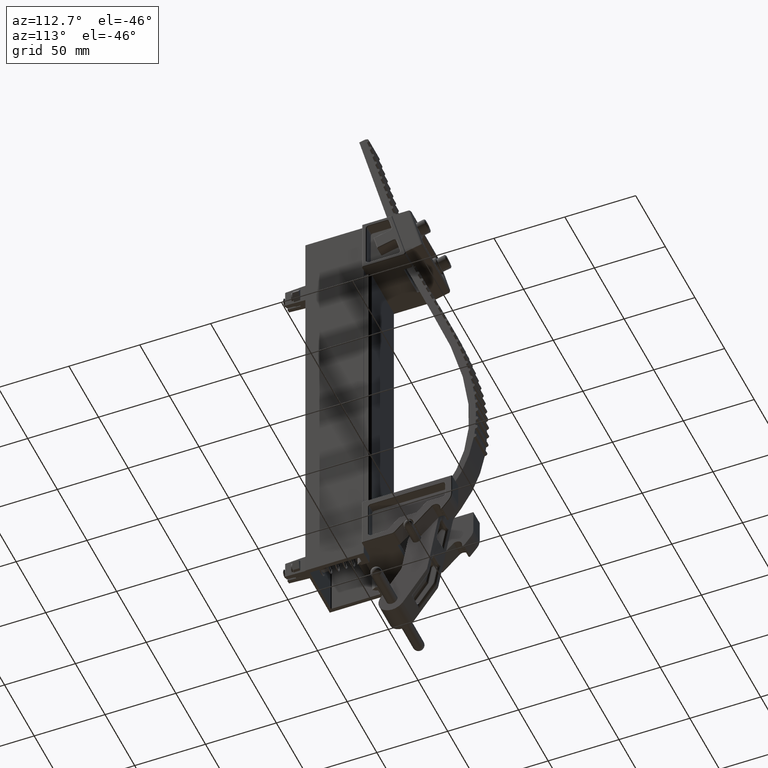
[diagram: clean part render]
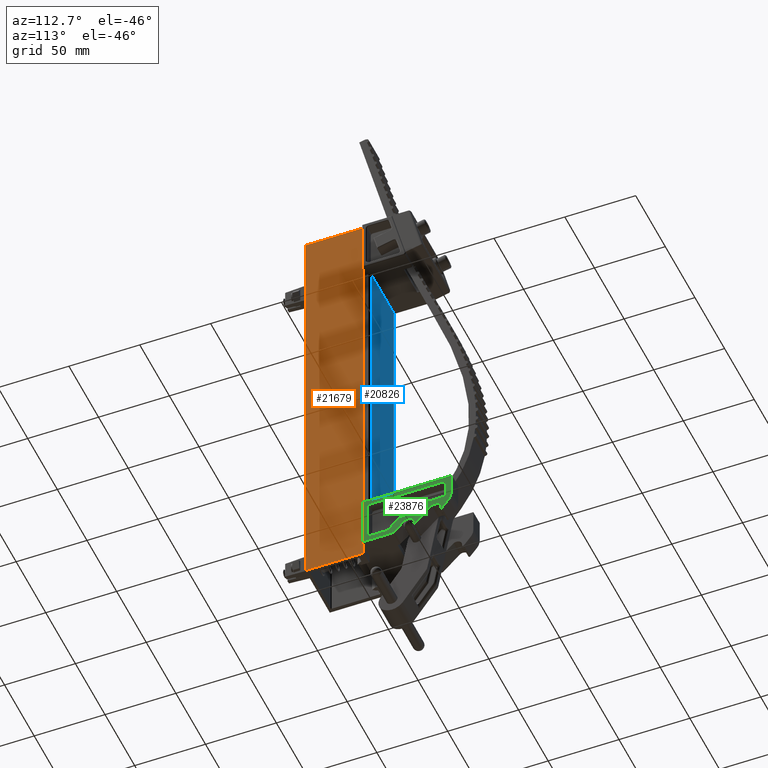
[diagram: same view with three faces highlighted in distinct colors, each labeled with its STEP entity id]
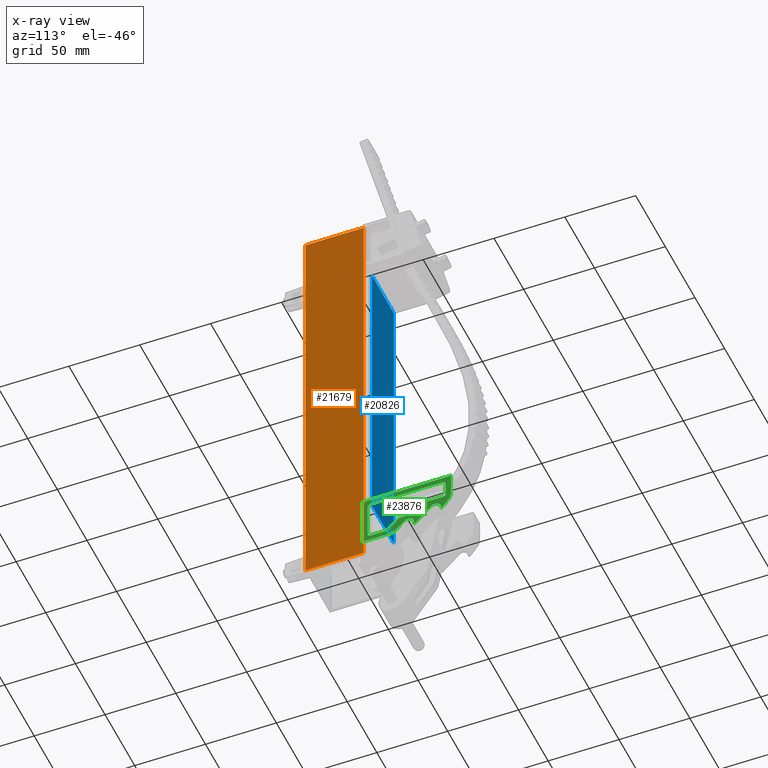
[diagram: x-ray of the same camera — body ghosted, the three highlighted faces saturated]
A machine part, auxiliary view with three faces highlighted in distinct colors.
The next image is the same camera in x-ray (body ghosted, the three faces saturated) — at least one of them is partly hidden behind the body in this view.
Their STEP definitions:

[orange] entity #21679 — the highlighted planar face has unit normal (-1, 0, 0).
#1497 = DIRECTION ( 'NONE',  ( 0.0000000000000000000, 1.000000000000000000, 0.0000000000000000000 ) ) ;
#1947 = CARTESIAN_POINT ( 'NONE',  ( 0.8125000000000000000, 0.0000000000000000000, -6.000000000000000900 ) ) ;
#2609 = DIRECTION ( 'NONE',  ( -0.0000000000000000000, -0.0000000000000000000, -1.000000000000000000 ) ) ;
#3018 = VECTOR ( 'NONE', #44880, 39.37007874015748100 ) ;
#3542 = VECTOR ( 'NONE', #2609, 39.37007874015748100 ) ;
#3948 = ORIENTED_EDGE ( 'NONE', *, *, #15637, .T. ) ;
#4610 = LINE ( 'NONE', #12894, #3542 ) ;
#5679 = VECTOR ( 'NONE', #9348, 39.37007874015748100 ) ;
#9348 = DIRECTION ( 'NONE',  ( -0.0000000000000000000, -0.0000000000000000000, -1.000000000000000000 ) ) ;
#10344 = EDGE_CURVE ( 'NONE', #32025, #33378, #31165, .T. ) ;
#11716 = ORIENTED_EDGE ( 'NONE', *, *, #18469, .F. ) ;
#12172 = LINE ( 'NONE', #31068, #3018 ) ;
#12236 = AXIS2_PLACEMENT_3D ( 'NONE', #14028, #17492, #41753 ) ;
#12894 = CARTESIAN_POINT ( 'NONE',  ( 0.8125000000000000000, 1.625000000000000200, 6.000000000000000900 ) ) ;
#13761 = FACE_OUTER_BOUND ( 'NONE', #33421, .T. ) ;
#14028 = CARTESIAN_POINT ( 'NONE',  ( 0.8125000000000000000, 0.0000000000000000000, 6.000000000000000900 ) ) ;
#14747 = LINE ( 'NONE', #25754, #39148 ) ;
#15637 = EDGE_CURVE ( 'NONE', #33378, #27840, #12172, .T. ) ;
#17492 = DIRECTION ( 'NONE',  ( -1.000000000000000000, 0.0000000000000000000, 0.0000000000000000000 ) ) ;
#18469 = EDGE_CURVE ( 'NONE', #32025, #38270, #14747, .T. ) ;
#19429 = ORIENTED_EDGE ( 'NONE', *, *, #19674, .F. ) ;
#19460 = CARTESIAN_POINT ( 'NONE',  ( 0.8125000000000000000, 1.625000000000000200, -6.000000000000000900 ) ) ;
#19654 = CARTESIAN_POINT ( 'NONE',  ( 0.8125000000000000000, 0.0000000000000000000, 6.000000000000000900 ) ) ;
#19674 = EDGE_CURVE ( 'NONE', #38270, #27840, #4610, .T. ) ;
#21679 = ADVANCED_FACE ( 'NONE', ( #13761 ), #38255, .F. ) ;
#25754 = CARTESIAN_POINT ( 'NONE',  ( 0.8125000000000000000, 0.0000000000000000000, 6.000000000000000900 ) ) ;
#26672 = CARTESIAN_POINT ( 'NONE',  ( 0.8125000000000000000, 0.0000000000000000000, 6.000000000000000900 ) ) ;
#27840 = VERTEX_POINT ( 'NONE', #19460 ) ;
#31068 = CARTESIAN_POINT ( 'NONE',  ( 0.8125000000000000000, 0.0000000000000000000, -6.000000000000000900 ) ) ;
#31165 = LINE ( 'NONE', #26672, #5679 ) ;
#32025 = VERTEX_POINT ( 'NONE', #19654 ) ;
#33378 = VERTEX_POINT ( 'NONE', #1947 ) ;
#33421 = EDGE_LOOP ( 'NONE', ( #3948, #19429, #11716, #35254 ) ) ;
#34901 = CARTESIAN_POINT ( 'NONE',  ( 0.8125000000000000000, 1.625000000000000200, 6.000000000000000900 ) ) ;
#35254 = ORIENTED_EDGE ( 'NONE', *, *, #10344, .T. ) ;
#38255 = PLANE ( 'NONE',  #12236 ) ;
#38270 = VERTEX_POINT ( 'NONE', #34901 ) ;
#39148 = VECTOR ( 'NONE', #1497, 39.37007874015748100 ) ;
#41753 = DIRECTION ( 'NONE',  ( 0.0000000000000000000, 0.0000000000000000000, 1.000000000000000000 ) ) ;
#44880 = DIRECTION ( 'NONE',  ( 0.0000000000000000000, 1.000000000000000000, 0.0000000000000000000 ) ) ;

[blue] entity #20826 — the highlighted planar face has unit normal (0, -1, 0).
#492 = CARTESIAN_POINT ( 'NONE',  ( -0.7374999999999996000, 0.0000000000000000000, 4.250000000000000000 ) ) ;
#1872 = FACE_OUTER_BOUND ( 'NONE', #44271, .T. ) ;
#2012 = CARTESIAN_POINT ( 'NONE',  ( -0.7374999999999996000, 0.0000000000000000000, -4.250000000000000000 ) ) ;
#5474 = ORIENTED_EDGE ( 'NONE', *, *, #41858, .T. ) ;
#7296 = DIRECTION ( 'NONE',  ( 0.0000000000000000000, 0.0000000000000000000, -1.000000000000000000 ) ) ;
#13436 = ORIENTED_EDGE ( 'NONE', *, *, #14714, .T. ) ;
#13502 = CARTESIAN_POINT ( 'NONE',  ( 0.7374999999999996000, 0.0000000000000000000, -4.250000000000000000 ) ) ;
#13924 = LINE ( 'NONE', #24777, #22069 ) ;
#14714 = EDGE_CURVE ( 'NONE', #36578, #18120, #13924, .T. ) ;
#15900 = PLANE ( 'NONE',  #38100 ) ;
#16060 = DIRECTION ( 'NONE',  ( 0.0000000000000000000, -1.000000000000000000, 0.0000000000000000000 ) ) ;
#16414 = VECTOR ( 'NONE', #43381, 39.37007874015748100 ) ;
#17936 = EDGE_CURVE ( 'NONE', #36578, #30400, #18580, .T. ) ;
#18120 = VERTEX_POINT ( 'NONE', #13502 ) ;
#18580 = LINE ( 'NONE', #22635, #16414 ) ;
#20051 = VECTOR ( 'NONE', #35179, 39.37007874015748100 ) ;
#20826 = ADVANCED_FACE ( 'NONE', ( #1872 ), #15900, .F. ) ;
#21643 = LINE ( 'NONE', #43194, #30859 ) ;
#21961 = VERTEX_POINT ( 'NONE', #2012 ) ;
#22069 = VECTOR ( 'NONE', #7296, 39.37007874015748100 ) ;
#22635 = CARTESIAN_POINT ( 'NONE',  ( 0.0000000000000000000, 0.0000000000000000000, 4.250000000000000000 ) ) ;
#24777 = CARTESIAN_POINT ( 'NONE',  ( 0.7374999999999996000, 0.0000000000000000000, 4.250000000000000000 ) ) ;
#25652 = CARTESIAN_POINT ( 'NONE',  ( 0.7374999999999994900, 3.414809992080329000E-017, 4.250000000000000000 ) ) ;
#25935 = DIRECTION ( 'NONE',  ( -1.000000000000000000, -0.0000000000000000000, -0.0000000000000000000 ) ) ;
#26982 = ORIENTED_EDGE ( 'NONE', *, *, #17936, .F. ) ;
#29234 = LINE ( 'NONE', #492, #20051 ) ;
#30400 = VERTEX_POINT ( 'NONE', #44613 ) ;
#30859 = VECTOR ( 'NONE', #25935, 39.37007874015748100 ) ;
#35179 = DIRECTION ( 'NONE',  ( 0.0000000000000000000, 0.0000000000000000000, 1.000000000000000000 ) ) ;
#36578 = VERTEX_POINT ( 'NONE', #25652 ) ;
#36830 = CARTESIAN_POINT ( 'NONE',  ( 0.0000000000000000000, 0.0000000000000000000, 4.250000000000000000 ) ) ;
#38100 = AXIS2_PLACEMENT_3D ( 'NONE', #36830, #16060, #40288 ) ;
#40288 = DIRECTION ( 'NONE',  ( 0.0000000000000000000, -0.0000000000000000000, -1.000000000000000000 ) ) ;
#41631 = EDGE_CURVE ( 'NONE', #21961, #30400, #29234, .T. ) ;
#41858 = EDGE_CURVE ( 'NONE', #18120, #21961, #21643, .T. ) ;
#43194 = CARTESIAN_POINT ( 'NONE',  ( 0.0000000000000000000, 0.0000000000000000000, -4.250000000000000000 ) ) ;
#43381 = DIRECTION ( 'NONE',  ( -1.000000000000000000, -0.0000000000000000000, -0.0000000000000000000 ) ) ;
#43822 = ORIENTED_EDGE ( 'NONE', *, *, #41631, .T. ) ;
#44271 = EDGE_LOOP ( 'NONE', ( #26982, #13436, #5474, #43822 ) ) ;
#44613 = CARTESIAN_POINT ( 'NONE',  ( -0.7374999999999994900, 0.0000000000000000000, 4.250000000000000000 ) ) ;

[green] entity #23876 — the highlighted planar face has unit normal (-1, -0, 0).
#13 = CARTESIAN_POINT ( 'NONE',  ( -0.8478195611820879000, 1.932269052731227200, -0.9375000000000000000 ) ) ;
#96 = EDGE_CURVE ( 'NONE', #37571, #44599, #19238, .T. ) ;
#143 = CARTESIAN_POINT ( 'NONE',  ( -1.056398836999593400, 0.9896279441836006700, -0.9375000000000000000 ) ) ;
#200 = EDGE_CURVE ( 'NONE', #10180, #37571, #8901, .T. ) ;
#298 = VERTEX_POINT ( 'NONE', #29057 ) ;
#631 = LINE ( 'NONE', #4869, #27212 ) ;
#1152 = CARTESIAN_POINT ( 'NONE',  ( -0.4349497585570439900, 1.868428865741051500, -0.9375000000000000000 ) ) ;
#1238 = EDGE_CURVE ( 'NONE', #32155, #18754, #30555, .T. ) ;
#1244 = EDGE_CURVE ( 'NONE', #5939, #11806, #29446, .T. ) ;
#1294 = DIRECTION ( 'NONE',  ( 1.000000000000000000, 0.0000000000000000000, 0.0000000000000000000 ) ) ;
#1545 = LINE ( 'NONE', #22550, #11799 ) ;
#1605 = VERTEX_POINT ( 'NONE', #39760 ) ;
#1607 = DIRECTION ( 'NONE',  ( 0.0000000000000000000, 0.0000000000000000000, 1.000000000000000000 ) ) ;
#1625 = CIRCLE ( 'NONE', #17387, 0.08249999999999999000 ) ;
#2138 = VECTOR ( 'NONE', #27799, 39.37007874015748900 ) ;
#2257 = DIRECTION ( 'NONE',  ( 0.0000000000000000000, 0.0000000000000000000, 1.000000000000000000 ) ) ;
#2391 = LINE ( 'NONE', #17963, #23041 ) ;
#2775 = CARTESIAN_POINT ( 'NONE',  ( 0.2361011630004073400, 1.833377944183601100, -0.9375000000000000000 ) ) ;
#2796 = CARTESIAN_POINT ( 'NONE',  ( -1.118898836999593100, 1.167332447854727300, -0.9375000000000000000 ) ) ;
#3124 = LINE ( 'NONE', #37478, #20483 ) ;
#3625 = DIRECTION ( 'NONE',  ( 1.000000000000000000, 0.0000000000000000000, 0.0000000000000000000 ) ) ;
#3692 = ORIENTED_EDGE ( 'NONE', *, *, #25069, .T. ) ;
#3731 = CARTESIAN_POINT ( 'NONE',  ( -0.3998988369995928300, 2.188377944183602400, -0.9375000000000000000 ) ) ;
#3849 = AXIS2_PLACEMENT_3D ( 'NONE', #22390, #1607, #25875 ) ;
#3874 = CARTESIAN_POINT ( 'NONE',  ( -0.3998988369995934400, 1.833377944183601100, -0.9375000000000000000 ) ) ;
#3890 = CARTESIAN_POINT ( 'NONE',  ( -0.4638467987991645700, 1.516154415990646200, -0.9375000000000000000 ) ) ;
#4077 = VERTEX_POINT ( 'NONE', #36568 ) ;
#4249 = CIRCLE ( 'NONE', #20077, 0.1762500000000037600 ) ;
#4338 = DIRECTION ( 'NONE',  ( 0.7071067811865459100, 0.7071067811865492400, -0.0000000000000000000 ) ) ;
#4367 = CARTESIAN_POINT ( 'NONE',  ( 0.08860116300040714300, -0.04162205581639850200, -0.9375000000000000000 ) ) ;
#4374 = VECTOR ( 'NONE', #16490, 39.37007874015748100 ) ;
#4698 = DIRECTION ( 'NONE',  ( 0.0000000000000000000, 0.0000000000000000000, 1.000000000000000000 ) ) ;
#4869 = CARTESIAN_POINT ( 'NONE',  ( -0.1881223008597465200, 1.621601408043753700, -0.9375000000000000000 ) ) ;
#4916 = CARTESIAN_POINT ( 'NONE',  ( 0.2361011630004074300, 2.188377944183601500, -0.9375000000000000000 ) ) ;
#5133 = EDGE_CURVE ( 'NONE', #29056, #21902, #13593, .T. ) ;
#5136 = CIRCLE ( 'NONE', #3849, 0.08250000000000000400 ) ;
#5320 = AXIS2_PLACEMENT_3D ( 'NONE', #11308, #35598, #14827 ) ;
#5906 = ORIENTED_EDGE ( 'NONE', *, *, #30073, .T. ) ;
#5939 = VERTEX_POINT ( 'NONE', #35044 ) ;
#6166 = DIRECTION ( 'NONE',  ( 0.0000000000000000000, 0.0000000000000000000, 1.000000000000000000 ) ) ;
#6266 = DIRECTION ( 'NONE',  ( 1.000000000000000000, 1.126535255119352600E-014, 0.0000000000000000000 ) ) ;
#6292 = ORIENTED_EDGE ( 'NONE', *, *, #30717, .T. ) ;
#6317 = AXIS2_PLACEMENT_3D ( 'NONE', #7107, #31374, #10571 ) ;
#6569 = EDGE_CURVE ( 'NONE', #11806, #17896, #42771, .T. ) ;
#7107 = CARTESIAN_POINT ( 'NONE',  ( -1.118898836999600700, 0.5423324478547272300, -0.9375000000000000000 ) ) ;
#7109 = CARTESIAN_POINT ( 'NONE',  ( -0.4513988369995925500, 1.958377944183601300, -0.9375000000000000000 ) ) ;
#7340 = DIRECTION ( 'NONE',  ( 0.0000000000000000000, 0.0000000000000000000, 1.000000000000000000 ) ) ;
#7487 = CIRCLE ( 'NONE', #41808, 0.1762500000000037600 ) ;
#7817 = CARTESIAN_POINT ( 'NONE',  ( -0.3998988369995934400, -0.2716220558163988700, -0.9375000000000000000 ) ) ;
#8842 = DIRECTION ( 'NONE',  ( 0.0000000000000000000, 0.0000000000000000000, 1.000000000000000000 ) ) ;
#8901 = CIRCLE ( 'NONE', #5320, 0.01124999999999991500 ) ;
#9129 = CARTESIAN_POINT ( 'NONE',  ( -0.3998988369995934400, 1.833377944183601100, -0.9375000000000000000 ) ) ;
#9275 = AXIS2_PLACEMENT_3D ( 'NONE', #26962, #6166, #30437 ) ;
#9406 = DIRECTION ( 'NONE',  ( -0.0000000000000000000, -0.0000000000000000000, -1.000000000000000000 ) ) ;
#9657 = CARTESIAN_POINT ( 'NONE',  ( -0.7480339642061605300, 1.833377944183601100, -0.9375000000000000000 ) ) ;
#10147 = DIRECTION ( 'NONE',  ( -0.0000000000000000000, -1.000000000000000000, -0.0000000000000000000 ) ) ;
#10180 = VERTEX_POINT ( 'NONE', #32567 ) ;
#10308 = CARTESIAN_POINT ( 'NONE',  ( -0.4513988369995926000, 1.546206454191074500, -0.9375000000000000000 ) ) ;
#10571 = DIRECTION ( 'NONE',  ( 1.000000000000000000, 0.0000000000000000000, 0.0000000000000000000 ) ) ;
#11260 = ORIENTED_EDGE ( 'NONE', *, *, #25588, .T. ) ;
#11308 = CARTESIAN_POINT ( 'NONE',  ( -0.8408537164406202400, 1.923435055502465700, -0.9375000000000000000 ) ) ;
#11535 = AXIS2_PLACEMENT_3D ( 'NONE', #25492, #4698, #28933 ) ;
#11799 = VECTOR ( 'NONE', #32835, 39.37007874015748100 ) ;
#11806 = VERTEX_POINT ( 'NONE', #31778 ) ;
#11807 = EDGE_CURVE ( 'NONE', #34978, #24770, #33579, .T. ) ;
#11948 = CARTESIAN_POINT ( 'NONE',  ( -0.9938988369995983600, -0.1241220558163988900, -0.9375000000000000000 ) ) ;
#11985 = ORIENTED_EDGE ( 'NONE', *, *, #36084, .T. ) ;
#12230 = CIRCLE ( 'NONE', #42145, 0.04249999999999988500 ) ;
#12329 = CARTESIAN_POINT ( 'NONE',  ( -1.223898836999599300, -0.2716220558163987600, -0.9375000000000000000 ) ) ;
#12582 = DIRECTION ( 'NONE',  ( 1.000000000000000000, 0.0000000000000000000, 0.0000000000000000000 ) ) ;
#12777 = DIRECTION ( 'NONE',  ( -0.0000000000000000000, -0.0000000000000000000, -1.000000000000000000 ) ) ;
#12855 = CARTESIAN_POINT ( 'NONE',  ( -0.6557765136127257100, 1.647602110685368700, -0.9375000000000000000 ) ) ;
#12922 = AXIS2_PLACEMENT_3D ( 'NONE', #17224, #41444, #20714 ) ;
#12960 = CIRCLE ( 'NONE', #15649, 0.3550000000000002600 ) ;
#13158 = DIRECTION ( 'NONE',  ( 0.7852441981121242000, 0.6191861992415909100, -0.0000000000000000000 ) ) ;
#13175 = VECTOR ( 'NONE', #37626, 39.37007874015748900 ) ;
#13382 = CARTESIAN_POINT ( 'NONE',  ( -0.03154644580510895100, 1.465025552989117000, -0.9375000000000000000 ) ) ;
#13422 = CARTESIAN_POINT ( 'NONE',  ( -0.7480339642061602000, 1.197794631687870000, -0.9375000000000000000 ) ) ;
#13574 = VERTEX_POINT ( 'NONE', #27968 ) ;
#13593 = LINE ( 'NONE', #9657, #4374 ) ;
#13797 = ORIENTED_EDGE ( 'NONE', *, *, #30460, .T. ) ;
#14468 = CARTESIAN_POINT ( 'NONE',  ( -0.6655339642061601800, 1.197794631687870000, -0.9375000000000000000 ) ) ;
#14542 = AXIS2_PLACEMENT_3D ( 'NONE', #17991, #42242, #21486 ) ;
#14827 = DIRECTION ( 'NONE',  ( 1.000000000000000000, 0.0000000000000000000, 0.0000000000000000000 ) ) ;
#15019 = ORIENTED_EDGE ( 'NONE', *, *, #20322, .T. ) ;
#15171 = CARTESIAN_POINT ( 'NONE',  ( -1.131023836999592400, 1.167332447854727300, -0.9375000000000000000 ) ) ;
#15509 = AXIS2_PLACEMENT_3D ( 'NONE', #2796, #27064, #6266 ) ;
#15649 = AXIS2_PLACEMENT_3D ( 'NONE', #9129, #33376, #12582 ) ;
#15706 = EDGE_CURVE ( 'NONE', #39706, #298, #38793, .T. ) ;
#16132 = VERTEX_POINT ( 'NONE', #29968 ) ;
#16490 = DIRECTION ( 'NONE',  ( 3.164406394801948500E-016, -1.000000000000000000, -0.0000000000000000000 ) ) ;
#16508 = CARTESIAN_POINT ( 'NONE',  ( -0.3998988369995935500, -0.1241220558163988900, -0.9375000000000000000 ) ) ;
#16543 = ORIENTED_EDGE ( 'NONE', *, *, #18934, .T. ) ;
#16672 = CARTESIAN_POINT ( 'NONE',  ( -0.7905339642061602900, 0.7661421109889219300, -0.9375000000000000000 ) ) ;
#16881 = DIRECTION ( 'NONE',  ( 5.110764495369288900E-015, -1.000000000000000000, -0.0000000000000000000 ) ) ;
#17109 = EDGE_LOOP ( 'NONE', ( #6292, #22720, #29902, #3692, #15019, #35025, #32547, #18052, #21105, #11985, #19265, #16543, #22675, #27912, #34416, #41998, #32343 ) ) ;
#17224 = CARTESIAN_POINT ( 'NONE',  ( -0.9938988369995990200, -0.04162205581639888400, -0.9375000000000000000 ) ) ;
#17387 = AXIS2_PLACEMENT_3D ( 'NONE', #29630, #8842, #33123 ) ;
#17896 = VERTEX_POINT ( 'NONE', #11948 ) ;
#17952 = DIRECTION ( 'NONE',  ( 1.000000000000000000, 0.0000000000000000000, 0.0000000000000000000 ) ) ;
#17963 = CARTESIAN_POINT ( 'NONE',  ( -1.223898836999603800, 1.833377944183599600, -0.9375000000000000000 ) ) ;
#17991 = CARTESIAN_POINT ( 'NONE',  ( -0.8063988369995935800, 1.739127944183600900, -0.9375000000000000000 ) ) ;
#18052 = ORIENTED_EDGE ( 'NONE', *, *, #31590, .T. ) ;
#18458 = CARTESIAN_POINT ( 'NONE',  ( -0.3688988369995926400, 2.040877944183601600, -0.9375000000000000000 ) ) ;
#18664 = EDGE_CURVE ( 'NONE', #41391, #18794, #22333, .T. ) ;
#18700 = ORIENTED_EDGE ( 'NONE', *, *, #43189, .T. ) ;
#18754 = VERTEX_POINT ( 'NONE', #41037 ) ;
#18794 = VERTEX_POINT ( 'NONE', #41194 ) ;
#18869 = LINE ( 'NONE', #2775, #37302 ) ;
#18934 = EDGE_CURVE ( 'NONE', #41636, #34978, #25041, .T. ) ;
#19043 = FACE_BOUND ( 'NONE', #22483, .T. ) ;
#19131 = VERTEX_POINT ( 'NONE', #37218 ) ;
#19212 = ORIENTED_EDGE ( 'NONE', *, *, #32878, .T. ) ;
#19238 = CIRCLE ( 'NONE', #31746, 0.01124999999999991500 ) ;
#19265 = ORIENTED_EDGE ( 'NONE', *, *, #33894, .T. ) ;
#19269 = CIRCLE ( 'NONE', #15509, 0.01212499999999926000 ) ;
#19339 = VECTOR ( 'NONE', #13158, 39.37007874015748100 ) ;
#19878 = VERTEX_POINT ( 'NONE', #18458 ) ;
#20023 = DIRECTION ( 'NONE',  ( 1.000000000000000000, -3.414809992080311800E-017, -0.0000000000000000000 ) ) ;
#20077 = AXIS2_PLACEMENT_3D ( 'NONE', #143, #24411, #3625 ) ;
#20130 = AXIS2_PLACEMENT_3D ( 'NONE', #3874, #7340, #31593 ) ;
#20151 = VECTOR ( 'NONE', #38259, 39.37007874015748100 ) ;
#20184 = DIRECTION ( 'NONE',  ( 1.000000000000000000, 0.0000000000000000000, 0.0000000000000000000 ) ) ;
#20322 = EDGE_CURVE ( 'NONE', #25228, #39706, #2391, .T. ) ;
#20483 = VECTOR ( 'NONE', #30664, 39.37007874015748100 ) ;
#20617 = LINE ( 'NONE', #20832, #2138 ) ;
#20714 = DIRECTION ( 'NONE',  ( 1.000000000000000000, 0.0000000000000000000, 0.0000000000000000000 ) ) ;
#20715 = CARTESIAN_POINT ( 'NONE',  ( -0.9938988369996012400, 0.3860005428988441100, -0.9375000000000000000 ) ) ;
#20832 = CARTESIAN_POINT ( 'NONE',  ( -0.2732610538029014400, 1.706740160986909300, -0.9375000000000000000 ) ) ;
#21102 = CARTESIAN_POINT ( 'NONE',  ( -0.8985957465674028200, 0.9111279623360988300, -0.9375000000000000000 ) ) ;
#21105 = ORIENTED_EDGE ( 'NONE', *, *, #31385, .T. ) ;
#21178 = VERTEX_POINT ( 'NONE', #4367 ) ;
#21340 = VECTOR ( 'NONE', #16881, 39.37007874015748100 ) ;
#21486 = DIRECTION ( 'NONE',  ( 1.000000000000000000, 0.0000000000000000000, 0.0000000000000000000 ) ) ;
#21800 = ORIENTED_EDGE ( 'NONE', *, *, #18664, .T. ) ;
#21902 = VERTEX_POINT ( 'NONE', #22205 ) ;
#22092 = DIRECTION ( 'NONE',  ( -0.0000000000000000000, -0.0000000000000000000, -1.000000000000000000 ) ) ;
#22205 = CARTESIAN_POINT ( 'NONE',  ( -0.7480339642061600800, 0.7661421109889219300, -0.9375000000000000000 ) ) ;
#22294 = ORIENTED_EDGE ( 'NONE', *, *, #30140, .T. ) ;
#22333 = CIRCLE ( 'NONE', #9275, 0.08249999999999997600 ) ;
#22390 = CARTESIAN_POINT ( 'NONE',  ( -0.3688988369995925300, 1.958377944183601300, -0.9375000000000000000 ) ) ;
#22483 = EDGE_LOOP ( 'NONE', ( #42572, #36019, #5906, #22294, #11260, #21800, #18700, #35003, #39435, #19212, #13797, #32221, #31777, #43101, #29637, #24886 ) ) ;
#22550 = CARTESIAN_POINT ( 'NONE',  ( 0.08860116300040735100, 1.833377944183601100, -0.9375000000000000000 ) ) ;
#22675 = ORIENTED_EDGE ( 'NONE', *, *, #11807, .T. ) ;
#22720 = ORIENTED_EDGE ( 'NONE', *, *, #23847, .T. ) ;
#22775 = VERTEX_POINT ( 'NONE', #10308 ) ;
#23041 = VECTOR ( 'NONE', #42216, 39.37007874015748100 ) ;
#23047 = CARTESIAN_POINT ( 'NONE',  ( -1.056398836999593400, 0.9896279441836006700, -0.9375000000000000000 ) ) ;
#23279 = CIRCLE ( 'NONE', #11535, 0.1762500000000003500 ) ;
#23553 = DIRECTION ( 'NONE',  ( -0.0000000000000000000, -1.000000000000000000, -0.0000000000000000000 ) ) ;
#23847 = EDGE_CURVE ( 'NONE', #1605, #39461, #31509, .T. ) ;
#23876 = ADVANCED_FACE ( 'NONE', ( #36374, #19043 ), #24651, .F. ) ;
#24225 = DIRECTION ( 'NONE',  ( 1.000000000000000000, 0.0000000000000000000, 0.0000000000000000000 ) ) ;
#24411 = DIRECTION ( 'NONE',  ( 0.0000000000000000000, 0.0000000000000000000, 1.000000000000000000 ) ) ;
#24651 = PLANE ( 'NONE',  #20130 ) ;
#24756 = CARTESIAN_POINT ( 'NONE',  ( -1.127472506721479500, 1.175906117576613700, -0.9375000000000000000 ) ) ;
#24770 = VERTEX_POINT ( 'NONE', #37569 ) ;
#24886 = ORIENTED_EDGE ( 'NONE', *, *, #29067, .T. ) ;
#25041 = LINE ( 'NONE', #1152, #42361 ) ;
#25069 = EDGE_CURVE ( 'NONE', #4077, #25228, #36283, .T. ) ;
#25140 = DIRECTION ( 'NONE',  ( -1.000000000000000000, -0.0000000000000000000, -0.0000000000000000000 ) ) ;
#25151 = VERTEX_POINT ( 'NONE', #43300 ) ;
#25228 = VERTEX_POINT ( 'NONE', #12329 ) ;
#25492 = CARTESIAN_POINT ( 'NONE',  ( -0.8063988369995935800, 1.739127944183600900, -0.9375000000000000000 ) ) ;
#25588 = EDGE_CURVE ( 'NONE', #21178, #41391, #1545, .T. ) ;
#25875 = DIRECTION ( 'NONE',  ( 1.000000000000000000, 0.0000000000000000000, 0.0000000000000000000 ) ) ;
#25891 = EDGE_CURVE ( 'NONE', #25151, #29056, #37879, .T. ) ;
#26195 = EDGE_CURVE ( 'NONE', #39461, #4077, #18869, .T. ) ;
#26196 = VECTOR ( 'NONE', #10147, 39.37007874015748100 ) ;
#26368 = CARTESIAN_POINT ( 'NONE',  ( -0.8521037164406201100, 1.923435055502465700, -0.9375000000000000000 ) ) ;
#26542 = DIRECTION ( 'NONE',  ( 1.000000000000000000, 0.0000000000000000000, 0.0000000000000000000 ) ) ;
#26563 = AXIS2_PLACEMENT_3D ( 'NONE', #14468, #38705, #17952 ) ;
#26882 = CARTESIAN_POINT ( 'NONE',  ( 0.08860116300040739300, 1.958377944183601300, -0.9375000000000000000 ) ) ;
#26962 = CARTESIAN_POINT ( 'NONE',  ( 0.006101163000407395200, 1.958377944183601300, -0.9375000000000000000 ) ) ;
#27064 = DIRECTION ( 'NONE',  ( -0.0000000000000000000, -0.0000000000000000000, -1.000000000000000000 ) ) ;
#27212 = VECTOR ( 'NONE', #39267, 39.37007874015748100 ) ;
#27458 = CARTESIAN_POINT ( 'NONE',  ( -0.4513988369995926000, 1.833377944183601100, -0.9375000000000000000 ) ) ;
#27657 = CARTESIAN_POINT ( 'NONE',  ( -1.076398836999608700, 1.833377944183597600, -0.9375000000000000000 ) ) ;
#27799 = DIRECTION ( 'NONE',  ( -0.7071067811865472400, -0.7071067811865476800, -0.0000000000000000000 ) ) ;
#27912 = ORIENTED_EDGE ( 'NONE', *, *, #31197, .T. ) ;
#27968 = CARTESIAN_POINT ( 'NONE',  ( 0.006101163000406570300, -0.1241220558163989200, -0.9375000000000000000 ) ) ;
#28374 = LINE ( 'NONE', #27458, #26196 ) ;
#28754 = CIRCLE ( 'NONE', #34781, 0.08249999999999986500 ) ;
#28933 = DIRECTION ( 'NONE',  ( 1.000000000000000000, 0.0000000000000000000, 0.0000000000000000000 ) ) ;
#29056 = VERTEX_POINT ( 'NONE', #13422 ) ;
#29057 = CARTESIAN_POINT ( 'NONE',  ( -1.193145049024188200, 0.6165786598793145900, -0.9375000000000000000 ) ) ;
#29067 = EDGE_CURVE ( 'NONE', #18754, #5939, #28754, .T. ) ;
#29446 = LINE ( 'NONE', #27657, #21340 ) ;
#29630 = CARTESIAN_POINT ( 'NONE',  ( 0.006101163000407156700, -0.04162205581639893300, -0.9375000000000000000 ) ) ;
#29637 = ORIENTED_EDGE ( 'NONE', *, *, #1238, .T. ) ;
#29902 = ORIENTED_EDGE ( 'NONE', *, *, #26195, .T. ) ;
#29968 = CARTESIAN_POINT ( 'NONE',  ( -1.114875943834364300, 1.155894268122744000, -0.9375000000000000000 ) ) ;
#30073 = EDGE_CURVE ( 'NONE', #17896, #13574, #32544, .T. ) ;
#30140 = EDGE_CURVE ( 'NONE', #13574, #21178, #1625, .T. ) ;
#30190 = CARTESIAN_POINT ( 'NONE',  ( -0.4938988369995926400, 1.546206454191074300, -0.9375000000000000000 ) ) ;
#30437 = DIRECTION ( 'NONE',  ( 1.000000000000000000, 0.0000000000000000000, 0.0000000000000000000 ) ) ;
#30460 = EDGE_CURVE ( 'NONE', #39265, #25151, #20617, .T. ) ;
#30555 = LINE ( 'NONE', #13382, #13175 ) ;
#30664 = DIRECTION ( 'NONE',  ( -1.000000000000000000, -0.0000000000000000000, -0.0000000000000000000 ) ) ;
#30717 = EDGE_CURVE ( 'NONE', #19131, #1605, #12960, .T. ) ;
#30999 = VERTEX_POINT ( 'NONE', #21102 ) ;
#31197 = EDGE_CURVE ( 'NONE', #24770, #10180, #23279, .T. ) ;
#31374 = DIRECTION ( 'NONE',  ( -0.0000000000000000000, -0.0000000000000000000, -1.000000000000000000 ) ) ;
#31385 = EDGE_CURVE ( 'NONE', #35570, #16132, #7487, .T. ) ;
#31462 = VECTOR ( 'NONE', #20023, 39.37007874015748100 ) ;
#31509 = LINE ( 'NONE', #3731, #20151 ) ;
#31590 = EDGE_CURVE ( 'NONE', #30999, #35570, #4249, .T. ) ;
#31593 = DIRECTION ( 'NONE',  ( 1.000000000000000000, 0.0000000000000000000, -0.0000000000000000000 ) ) ;
#31746 = AXIS2_PLACEMENT_3D ( 'NONE', #33581, #12777, #37043 ) ;
#31777 = ORIENTED_EDGE ( 'NONE', *, *, #5133, .T. ) ;
#31778 = CARTESIAN_POINT ( 'NONE',  ( -1.076398836999599200, -0.04162205581639830800, -0.9375000000000000000 ) ) ;
#32155 = VERTEX_POINT ( 'NONE', #40852 ) ;
#32221 = ORIENTED_EDGE ( 'NONE', *, *, #25891, .T. ) ;
#32343 = ORIENTED_EDGE ( 'NONE', *, *, #43894, .T. ) ;
#32544 = LINE ( 'NONE', #16508, #31462 ) ;
#32547 = ORIENTED_EDGE ( 'NONE', *, *, #40002, .T. ) ;
#32567 = CARTESIAN_POINT ( 'NONE',  ( -0.8387864236741585700, 1.912376628823333900, -0.9375000000000000000 ) ) ;
#32579 = AXIS2_PLACEMENT_3D ( 'NONE', #42834, #22092, #1294 ) ;
#32760 = VERTEX_POINT ( 'NONE', #7109 ) ;
#32835 = DIRECTION ( 'NONE',  ( 1.237868622129119300E-016, 1.000000000000000000, -0.0000000000000000000 ) ) ;
#32878 = EDGE_CURVE ( 'NONE', #22775, #39265, #12230, .T. ) ;
#32945 = AXIS2_PLACEMENT_3D ( 'NONE', #16672, #40912, #20184 ) ;
#33123 = DIRECTION ( 'NONE',  ( 1.000000000000000000, 0.0000000000000000000, 0.0000000000000000000 ) ) ;
#33376 = DIRECTION ( 'NONE',  ( -0.0000000000000000000, -0.0000000000000000000, -1.000000000000000000 ) ) ;
#33579 = CIRCLE ( 'NONE', #14542, 0.1762500000000003500 ) ;
#33581 = CARTESIAN_POINT ( 'NONE',  ( -0.8408537164406202400, 1.923435055502465700, -0.9375000000000000000 ) ) ;
#33688 = DIRECTION ( 'NONE',  ( 1.000000000000000000, 0.0000000000000000000, 0.0000000000000000000 ) ) ;
#33894 = EDGE_CURVE ( 'NONE', #44205, #41636, #43106, .T. ) ;
#33964 = EDGE_CURVE ( 'NONE', #19878, #32760, #5136, .T. ) ;
#34416 = ORIENTED_EDGE ( 'NONE', *, *, #200, .T. ) ;
#34781 = AXIS2_PLACEMENT_3D ( 'NONE', #20715, #44955, #24225 ) ;
#34978 = VERTEX_POINT ( 'NONE', #12855 ) ;
#35003 = ORIENTED_EDGE ( 'NONE', *, *, #33964, .T. ) ;
#35025 = ORIENTED_EDGE ( 'NONE', *, *, #15706, .T. ) ;
#35044 = CARTESIAN_POINT ( 'NONE',  ( -1.076398836999601100, 0.3860005428988440600, -0.9375000000000000000 ) ) ;
#35204 = VECTOR ( 'NONE', #25140, 39.37007874015748100 ) ;
#35570 = VERTEX_POINT ( 'NONE', #40725 ) ;
#35598 = DIRECTION ( 'NONE',  ( -0.0000000000000000000, -0.0000000000000000000, -1.000000000000000000 ) ) ;
#36019 = ORIENTED_EDGE ( 'NONE', *, *, #6569, .T. ) ;
#36084 = EDGE_CURVE ( 'NONE', #16132, #44205, #19269, .T. ) ;
#36283 = LINE ( 'NONE', #7817, #35204 ) ;
#36374 = FACE_OUTER_BOUND ( 'NONE', #17109, .T. ) ;
#36568 = CARTESIAN_POINT ( 'NONE',  ( 0.2361011630004074300, -0.2716220558163987600, -0.9375000000000000000 ) ) ;
#37043 = DIRECTION ( 'NONE',  ( 1.000000000000000000, 0.0000000000000000000, 0.0000000000000000000 ) ) ;
#37218 = CARTESIAN_POINT ( 'NONE',  ( -0.6197099377303576500, 2.112139634513404500, -0.9375000000000000000 ) ) ;
#37302 = VECTOR ( 'NONE', #23553, 39.37007874015748100 ) ;
#37478 = CARTESIAN_POINT ( 'NONE',  ( -0.3998988369995934400, 2.040877944183601600, -0.9375000000000000000 ) ) ;
#37569 = CARTESIAN_POINT ( 'NONE',  ( -0.6301488369995932300, 1.739127944183600900, -0.9375000000000000000 ) ) ;
#37571 = VERTEX_POINT ( 'NONE', #26368 ) ;
#37626 = DIRECTION ( 'NONE',  ( -0.7071067811865472400, -0.7071067811865476800, -0.0000000000000000000 ) ) ;
#37770 = CIRCLE ( 'NONE', #32945, 0.04250000000000016300 ) ;
#37879 = CIRCLE ( 'NONE', #26563, 0.08250000000000000400 ) ;
#38259 = DIRECTION ( 'NONE',  ( 1.000000000000000000, -1.665760971746499900E-015, -0.0000000000000000000 ) ) ;
#38664 = EDGE_CURVE ( 'NONE', #32760, #22775, #28374, .T. ) ;
#38705 = DIRECTION ( 'NONE',  ( 0.0000000000000000000, 0.0000000000000000000, 1.000000000000000000 ) ) ;
#38793 = CIRCLE ( 'NONE', #6317, 0.1049999999999999700 ) ;
#38848 = LINE ( 'NONE', #44406, #19339 ) ;
#39265 = VERTEX_POINT ( 'NONE', #3890 ) ;
#39267 = DIRECTION ( 'NONE',  ( 0.7071067811865482400, 0.7071067811865469100, -0.0000000000000000000 ) ) ;
#39435 = ORIENTED_EDGE ( 'NONE', *, *, #38664, .T. ) ;
#39461 = VERTEX_POINT ( 'NONE', #4916 ) ;
#39706 = VERTEX_POINT ( 'NONE', #44468 ) ;
#39760 = CARTESIAN_POINT ( 'NONE',  ( -0.3998988369995934400, 2.188377944183601500, -0.9375000000000000000 ) ) ;
#40002 = EDGE_CURVE ( 'NONE', #298, #30999, #631, .T. ) ;
#40725 = CARTESIAN_POINT ( 'NONE',  ( -0.8801488369995896800, 0.9896279441836006700, -0.9375000000000000000 ) ) ;
#40852 = CARTESIAN_POINT ( 'NONE',  ( -0.7604819260057319500, 0.7360900727884935900, -0.9375000000000000000 ) ) ;
#40912 = DIRECTION ( 'NONE',  ( -0.0000000000000000000, -0.0000000000000000000, -1.000000000000000000 ) ) ;
#41037 = CARTESIAN_POINT ( 'NONE',  ( -1.052235146447491300, 0.4443368523467342000, -0.9375000000000000000 ) ) ;
#41194 = CARTESIAN_POINT ( 'NONE',  ( 0.006101163000407390900, 2.040877944183601600, -0.9375000000000000000 ) ) ;
#41391 = VERTEX_POINT ( 'NONE', #26882 ) ;
#41444 = DIRECTION ( 'NONE',  ( 0.0000000000000000000, 0.0000000000000000000, 1.000000000000000000 ) ) ;
#41636 = VERTEX_POINT ( 'NONE', #24756 ) ;
#41808 = AXIS2_PLACEMENT_3D ( 'NONE', #23047, #2257, #26542 ) ;
#41998 = ORIENTED_EDGE ( 'NONE', *, *, #96, .T. ) ;
#42145 = AXIS2_PLACEMENT_3D ( 'NONE', #30190, #9406, #33688 ) ;
#42216 = DIRECTION ( 'NONE',  ( -2.139574877859715900E-015, 1.000000000000000000, -0.0000000000000000000 ) ) ;
#42242 = DIRECTION ( 'NONE',  ( 0.0000000000000000000, 0.0000000000000000000, 1.000000000000000000 ) ) ;
#42361 = VECTOR ( 'NONE', #4338, 39.37007874015748100 ) ;
#42572 = ORIENTED_EDGE ( 'NONE', *, *, #1244, .T. ) ;
#42771 = CIRCLE ( 'NONE', #12922, 0.08250000000000000400 ) ;
#42834 = CARTESIAN_POINT ( 'NONE',  ( -1.118898836999593100, 1.167332447854727300, -0.9375000000000000000 ) ) ;
#43101 = ORIENTED_EDGE ( 'NONE', *, *, #43881, .T. ) ;
#43106 = CIRCLE ( 'NONE', #32579, 0.01212499999999926000 ) ;
#43189 = EDGE_CURVE ( 'NONE', #18794, #19878, #3124, .T. ) ;
#43300 = CARTESIAN_POINT ( 'NONE',  ( -0.7238702736540505400, 1.256130941135760000, -0.9375000000000000000 ) ) ;
#43881 = EDGE_CURVE ( 'NONE', #21902, #32155, #37770, .T. ) ;
#43894 = EDGE_CURVE ( 'NONE', #44599, #19131, #38848, .T. ) ;
#44205 = VERTEX_POINT ( 'NONE', #15171 ) ;
#44406 = CARTESIAN_POINT ( 'NONE',  ( -0.6197099377303576500, 2.112139634513404500, -0.9375000000000000000 ) ) ;
#44468 = CARTESIAN_POINT ( 'NONE',  ( -1.223898836999601100, 0.5423324478547272300, -0.9375000000000000000 ) ) ;
#44599 = VERTEX_POINT ( 'NONE', #13 ) ;
#44955 = DIRECTION ( 'NONE',  ( 0.0000000000000000000, 0.0000000000000000000, 1.000000000000000000 ) ) ;